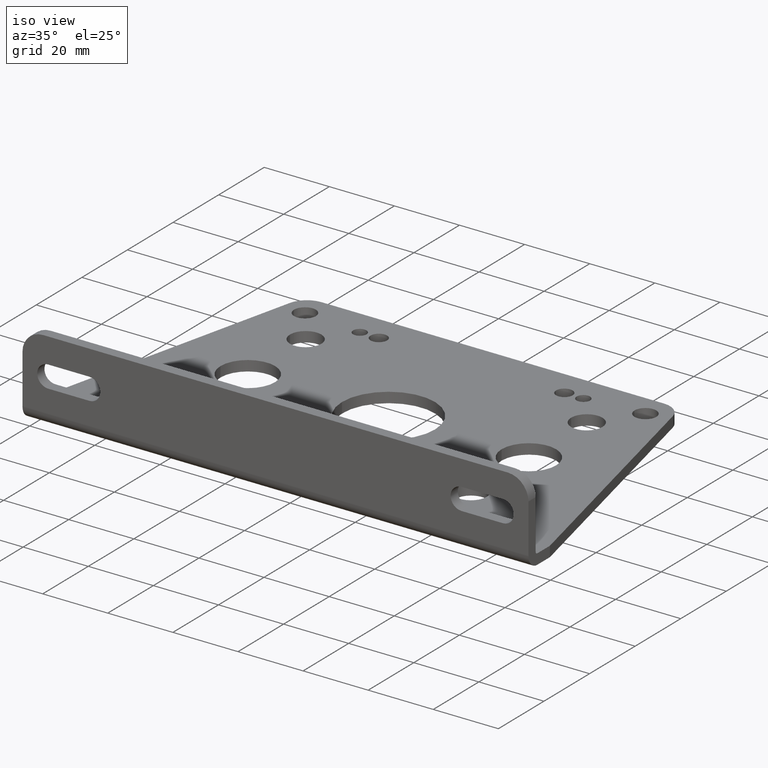
[diagram: clean part render]
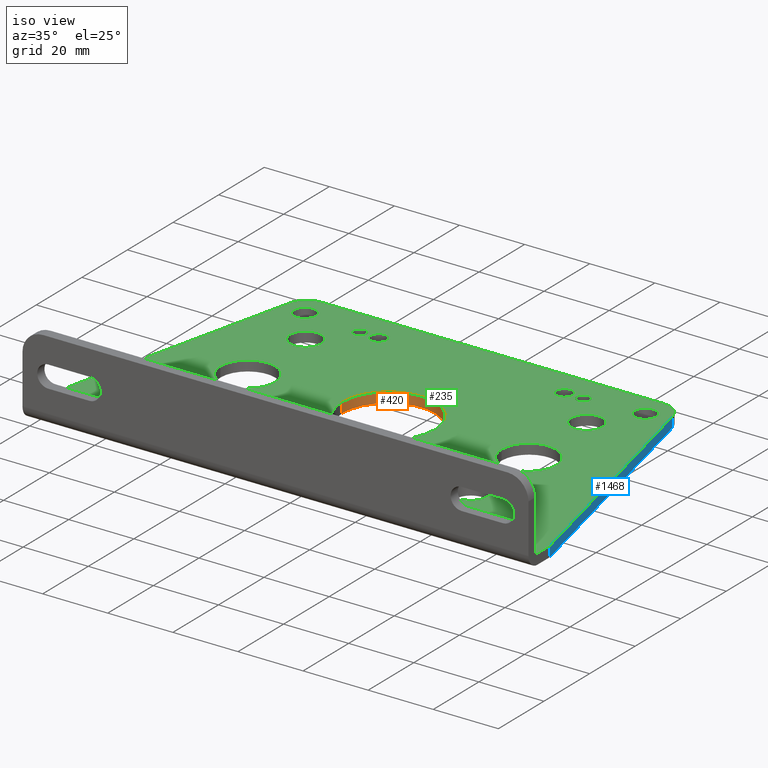
[diagram: same view with three faces highlighted in distinct colors, each labeled with its STEP entity id]
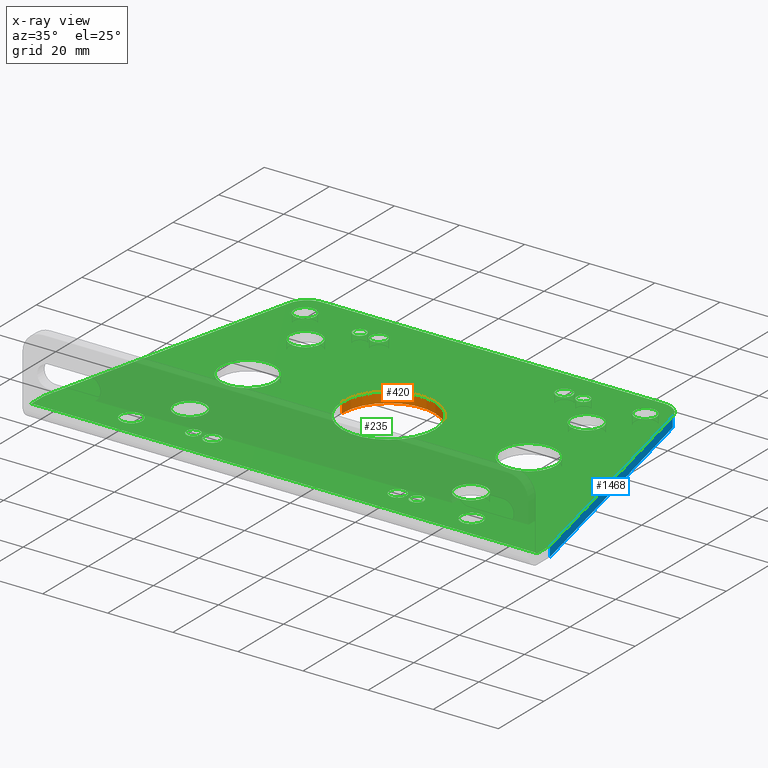
[diagram: x-ray of the same camera — body ghosted, the three highlighted faces saturated]
A machine part, iso view with three faces highlighted in distinct colors.
The next image is the same camera in x-ray (body ghosted, the three faces saturated) — at least one of them is partly hidden behind the body in this view.
Their STEP definitions:

[orange] entity #420 — the highlighted cylindrical surface (partial cylindrical patch) has radius 14.2875 mm, axis along (-0, -0, 1).
#23 = EDGE_CURVE ( 'NONE', #1027, #573, #1287, .T. ) ;
#29 = CARTESIAN_POINT ( 'NONE',  ( 3.061999999999999800, 1.825000000000001500, -0.1250000000000000000 ) ) ;
#155 = EDGE_CURVE ( 'NONE', #2123, #1027, #2154, .T. ) ;
#161 = DIRECTION ( 'NONE',  ( -0.0000000000000000000, -0.0000000000000000000, 1.000000000000000000 ) ) ;
#214 = CARTESIAN_POINT ( 'NONE',  ( 2.499499999999999800, 1.825000000000001500, -0.1250000000000000000 ) ) ;
#215 = DIRECTION ( 'NONE',  ( 1.000000000000000000, 0.0000000000000000000, 0.0000000000000000000 ) ) ;
#260 = VERTEX_POINT ( 'NONE', #1495 ) ;
#367 = CIRCLE ( 'NONE', #1713, 0.5624999999999997800 ) ;
#420 = ADVANCED_FACE ( 'NONE', ( #670 ), #1912, .F. ) ;
#501 = CARTESIAN_POINT ( 'NONE',  ( 3.624499999999999400, 1.825000000000001500, -0.1250000000000000000 ) ) ;
#522 = ORIENTED_EDGE ( 'NONE', *, *, #155, .T. ) ;
#573 = VERTEX_POINT ( 'NONE', #1028 ) ;
#636 = CARTESIAN_POINT ( 'NONE',  ( 3.061999999999999800, 1.825000000000001500, 0.0000000000000000000 ) ) ;
#670 = FACE_OUTER_BOUND ( 'NONE', #2066, .T. ) ;
#676 = VECTOR ( 'NONE', #1801, 39.37007874015748100 ) ;
#734 = LINE ( 'NONE', #214, #676 ) ;
#816 = DIRECTION ( 'NONE',  ( 1.000000000000000000, 0.0000000000000000000, 0.0000000000000000000 ) ) ;
#860 = DIRECTION ( 'NONE',  ( -0.0000000000000000000, -0.0000000000000000000, 1.000000000000000000 ) ) ;
#988 = ORIENTED_EDGE ( 'NONE', *, *, #1777, .F. ) ;
#1027 = VERTEX_POINT ( 'NONE', #1733 ) ;
#1028 = CARTESIAN_POINT ( 'NONE',  ( 2.499499999999999800, 1.825000000000001500, 0.0000000000000000000 ) ) ;
#1060 = ORIENTED_EDGE ( 'NONE', *, *, #1885, .F. ) ;
#1176 = CARTESIAN_POINT ( 'NONE',  ( 3.624499999999999400, 1.825000000000001500, -0.1250000000000000000 ) ) ;
#1272 = ORIENTED_EDGE ( 'NONE', *, *, #23, .T. ) ;
#1279 = DIRECTION ( 'NONE',  ( 0.0000000000000000000, 0.0000000000000000000, 1.000000000000000000 ) ) ;
#1287 = CIRCLE ( 'NONE', #2285, 0.5624999999999997800 ) ;
#1495 = CARTESIAN_POINT ( 'NONE',  ( 2.499499999999999800, 1.825000000000001500, -0.1250000000000000000 ) ) ;
#1687 = VECTOR ( 'NONE', #860, 39.37007874015748100 ) ;
#1713 = AXIS2_PLACEMENT_3D ( 'NONE', #29, #1279, #215 ) ;
#1733 = CARTESIAN_POINT ( 'NONE',  ( 3.624499999999999400, 1.825000000000001500, 0.0000000000000000000 ) ) ;
#1746 = CARTESIAN_POINT ( 'NONE',  ( 3.061999999999999800, 1.825000000000001500, -0.1250000000000000000 ) ) ;
#1777 = EDGE_CURVE ( 'NONE', #260, #573, #734, .T. ) ;
#1801 = DIRECTION ( 'NONE',  ( -0.0000000000000000000, -0.0000000000000000000, 1.000000000000000000 ) ) ;
#1864 = DIRECTION ( 'NONE',  ( 0.0000000000000000000, 0.0000000000000000000, 1.000000000000000000 ) ) ;
#1885 = EDGE_CURVE ( 'NONE', #2123, #260, #367, .T. ) ;
#1912 = CYLINDRICAL_SURFACE ( 'NONE', #1957, 0.5624999999999997800 ) ;
#1929 = DIRECTION ( 'NONE',  ( 1.000000000000000000, 0.0000000000000000000, 0.0000000000000000000 ) ) ;
#1957 = AXIS2_PLACEMENT_3D ( 'NONE', #1746, #161, #1929 ) ;
#2066 = EDGE_LOOP ( 'NONE', ( #988, #1060, #522, #1272 ) ) ;
#2123 = VERTEX_POINT ( 'NONE', #1176 ) ;
#2154 = LINE ( 'NONE', #501, #1687 ) ;
#2285 = AXIS2_PLACEMENT_3D ( 'NONE', #636, #1864, #816 ) ;

[blue] entity #1468 — the highlighted planar face has unit normal (-0.9738, -0.2276, 0).
#10 = VERTEX_POINT ( 'NONE', #1842 ) ;
#85 = CARTESIAN_POINT ( 'NONE',  ( 5.375133197209614800, 3.431898472698106300, -0.1250000000000000000 ) ) ;
#102 = CARTESIAN_POINT ( 'NONE',  ( 6.120000000000000100, 0.2450000000000016300, -0.1250000000000000000 ) ) ;
#141 = DIRECTION ( 'NONE',  ( 0.2275938907924206500, -0.9737561403523818900, 0.0000000000000000000 ) ) ;
#148 = VECTOR ( 'NONE', #2002, 39.37007874015748100 ) ;
#225 = DIRECTION ( 'NONE',  ( -0.0000000000000000000, -0.0000000000000000000, 1.000000000000000000 ) ) ;
#239 = VERTEX_POINT ( 'NONE', #85 ) ;
#313 = DIRECTION ( 'NONE',  ( 0.2275938907924206500, -0.9737561403523818900, 0.0000000000000000000 ) ) ;
#382 = LINE ( 'NONE', #659, #1278 ) ;
#438 = VECTOR ( 'NONE', #313, 39.37007874015748900 ) ;
#475 = LINE ( 'NONE', #1990, #2294 ) ;
#493 = CARTESIAN_POINT ( 'NONE',  ( 5.330000000000000100, 3.625000000000000900, -0.1250000000000000000 ) ) ;
#494 = ORIENTED_EDGE ( 'NONE', *, *, #506, .T. ) ;
#506 = EDGE_CURVE ( 'NONE', #1933, #10, #382, .T. ) ;
#514 = DIRECTION ( 'NONE',  ( 0.2275938907924206500, -0.9737561403523818900, 0.0000000000000000000 ) ) ;
#659 = CARTESIAN_POINT ( 'NONE',  ( 5.330000000000000100, 3.625000000000000900, 0.0000000000000000000 ) ) ;
#669 = EDGE_CURVE ( 'NONE', #239, #1933, #475, .T. ) ;
#869 = DIRECTION ( 'NONE',  ( -0.9737561403523820000, -0.2275938907924206800, 0.0000000000000000000 ) ) ;
#1092 = EDGE_CURVE ( 'NONE', #239, #1240, #1443, .T. ) ;
#1156 = LINE ( 'NONE', #1294, #148 ) ;
#1232 = PLANE ( 'NONE',  #1739 ) ;
#1240 = VERTEX_POINT ( 'NONE', #102 ) ;
#1278 = VECTOR ( 'NONE', #141, 39.37007874015748900 ) ;
#1294 = CARTESIAN_POINT ( 'NONE',  ( 6.120000000000000100, 0.2450000000000016300, 0.0000000000000000000 ) ) ;
#1403 = CARTESIAN_POINT ( 'NONE',  ( 5.330000000000000100, 3.625000000000000900, 0.0000000000000000000 ) ) ;
#1443 = LINE ( 'NONE', #493, #438 ) ;
#1468 = ADVANCED_FACE ( 'NONE', ( #1904 ), #1232, .F. ) ;
#1739 = AXIS2_PLACEMENT_3D ( 'NONE', #1403, #869, #514 ) ;
#1842 = CARTESIAN_POINT ( 'NONE',  ( 6.120000000000000100, 0.2450000000000015500, 0.0000000000000000000 ) ) ;
#1904 = FACE_OUTER_BOUND ( 'NONE', #2112, .T. ) ;
#1933 = VERTEX_POINT ( 'NONE', #1984 ) ;
#1970 = EDGE_CURVE ( 'NONE', #10, #1240, #1156, .T. ) ;
#1984 = CARTESIAN_POINT ( 'NONE',  ( 5.375133197209614800, 3.431898472698106300, 0.0000000000000000000 ) ) ;
#1990 = CARTESIAN_POINT ( 'NONE',  ( 5.375133197209614800, 3.431898472698106300, 0.0000000000000000000 ) ) ;
#2002 = DIRECTION ( 'NONE',  ( -0.0000000000000000000, -0.0000000000000000000, -1.000000000000000000 ) ) ;
#2033 = ORIENTED_EDGE ( 'NONE', *, *, #1970, .T. ) ;
#2112 = EDGE_LOOP ( 'NONE', ( #2289, #2174, #494, #2033 ) ) ;
#2174 = ORIENTED_EDGE ( 'NONE', *, *, #669, .T. ) ;
#2289 = ORIENTED_EDGE ( 'NONE', *, *, #1092, .F. ) ;
#2294 = VECTOR ( 'NONE', #225, 39.37007874015748100 ) ;

[green] entity #235 — the highlighted planar face has unit normal (0, 0, 1).
#5 = DIRECTION ( 'NONE',  ( 0.0000000000000000000, 0.0000000000000000000, 1.000000000000000000 ) ) ;
#7 = VERTEX_POINT ( 'NONE', #331 ) ;
#10 = VERTEX_POINT ( 'NONE', #1842 ) ;
#23 = EDGE_CURVE ( 'NONE', #1027, #573, #1287, .T. ) ;
#34 = DIRECTION ( 'NONE',  ( 0.0000000000000000000, 0.0000000000000000000, 1.000000000000000000 ) ) ;
#35 = AXIS2_PLACEMENT_3D ( 'NONE', #316, #1554, #497 ) ;
#36 = VERTEX_POINT ( 'NONE', #1179 ) ;
#47 = DIRECTION ( 'NONE',  ( 1.000000000000000000, 0.0000000000000000000, 0.0000000000000000000 ) ) ;
#50 = CIRCLE ( 'NONE', #1222, 0.1319999999999995600 ) ;
#52 = FACE_BOUND ( 'NONE', #2135, .T. ) ;
#55 = CARTESIAN_POINT ( 'NONE',  ( 1.029999999999999600, 1.825000000000001500, 0.0000000000000000000 ) ) ;
#56 = AXIS2_PLACEMENT_3D ( 'NONE', #1620, #1791, #743 ) ;
#59 = CIRCLE ( 'NONE', #81, 0.1319999999999995600 ) ;
#67 = VERTEX_POINT ( 'NONE', #1872 ) ;
#76 = CIRCLE ( 'NONE', #1276, 0.08149999999999993400 ) ;
#81 = AXIS2_PLACEMENT_3D ( 'NONE', #1760, #709, #1940 ) ;
#94 = DIRECTION ( 'NONE',  ( 1.000000000000000000, 0.0000000000000000000, 0.0000000000000000000 ) ) ;
#103 = CARTESIAN_POINT ( 'NONE',  ( 1.837499999999999900, 3.263000000000001200, 0.0000000000000000000 ) ) ;
#113 = CIRCLE ( 'NONE', #1096, 0.08149999999999993400 ) ;
#115 = FACE_BOUND ( 'NONE', #856, .T. ) ;
#116 = CARTESIAN_POINT ( 'NONE',  ( 4.987000000000001000, 3.325000000000001100, 0.0000000000000000000 ) ) ;
#141 = DIRECTION ( 'NONE',  ( 0.2275938907924206500, -0.9737561403523818900, 0.0000000000000000000 ) ) ;
#150 = VERTEX_POINT ( 'NONE', #1212 ) ;
#156 = CARTESIAN_POINT ( 'NONE',  ( 4.493500000000000900, 3.263000000000001200, 0.0000000000000000000 ) ) ;
#157 = EDGE_LOOP ( 'NONE', ( #1088, #2091 ) ) ;
#160 = ORIENTED_EDGE ( 'NONE', *, *, #1708, .F. ) ;
#166 = EDGE_CURVE ( 'NONE', #2281, #1438, #334, .T. ) ;
#169 = CARTESIAN_POINT ( 'NONE',  ( 4.760000000000000700, 0.8250000000000017300, 0.0000000000000000000 ) ) ;
#170 = LINE ( 'NONE', #209, #2049 ) ;
#171 = DIRECTION ( 'NONE',  ( 1.000000000000000000, 0.0000000000000000000, 0.0000000000000000000 ) ) ;
#184 = ORIENTED_EDGE ( 'NONE', *, *, #884, .F. ) ;
#199 = DIRECTION ( 'NONE',  ( 0.0000000000000000000, 0.0000000000000000000, 1.000000000000000000 ) ) ;
#204 = VERTEX_POINT ( 'NONE', #570 ) ;
#206 = CARTESIAN_POINT ( 'NONE',  ( 0.8690000000000001100, 0.3250000000000015700, 0.0000000000000000000 ) ) ;
#209 = CARTESIAN_POINT ( 'NONE',  ( 6.120000000000000100, 3.625000000000000900, 0.0000000000000000000 ) ) ;
#220 = CARTESIAN_POINT ( 'NONE',  ( 4.430000000000000600, 1.825000000000001500, 0.0000000000000000000 ) ) ;
#222 = LINE ( 'NONE', #300, #1174 ) ;
#235 = ADVANCED_FACE ( 'NONE', ( #753, #1122, #1583, #641, #1994, #1527, #1074, #586, #115, #1939, #1472, #1013, #531, #52, #1883, #1422, #952, #477, #2296, #1823 ), #2097, .T. ) ;
#238 = ORIENTED_EDGE ( 'NONE', *, *, #1473, .F. ) ;
#240 = ORIENTED_EDGE ( 'NONE', *, *, #747, .T. ) ;
#244 = CIRCLE ( 'NONE', #1167, 0.1899999999999998900 ) ;
#253 = AXIS2_PLACEMENT_3D ( 'NONE', #481, #1731, #324 ) ;
#254 = ORIENTED_EDGE ( 'NONE', *, *, #2163, .F. ) ;
#261 = EDGE_CURVE ( 'NONE', #2062, #1423, #782, .T. ) ;
#271 = DIRECTION ( 'NONE',  ( 0.0000000000000000000, 0.0000000000000000000, 1.000000000000000000 ) ) ;
#279 = CARTESIAN_POINT ( 'NONE',  ( 1.626499999999999400, 3.263000000000001200, 0.0000000000000000000 ) ) ;
#282 = VERTEX_POINT ( 'NONE', #1693 ) ;
#289 = ORIENTED_EDGE ( 'NONE', *, *, #845, .F. ) ;
#294 = ORIENTED_EDGE ( 'NONE', *, *, #630, .F. ) ;
#295 = ORIENTED_EDGE ( 'NONE', *, *, #944, .F. ) ;
#300 = CARTESIAN_POINT ( 'NONE',  ( 6.120000000000000100, 0.02899999999999998400, 0.0000000000000000000 ) ) ;
#302 = VERTEX_POINT ( 'NONE', #279 ) ;
#316 = CARTESIAN_POINT ( 'NONE',  ( 4.760000000000000700, 2.825000000000001100, 0.0000000000000000000 ) ) ;
#318 = DIRECTION ( 'NONE',  ( 0.0000000000000000000, 0.0000000000000000000, 1.000000000000000000 ) ) ;
#322 = CARTESIAN_POINT ( 'NONE',  ( 5.119000000000000700, 0.3250000000000015700, 0.0000000000000000000 ) ) ;
#324 = DIRECTION ( 'NONE',  ( 1.000000000000000000, 0.0000000000000000000, 0.0000000000000000000 ) ) ;
#327 = DIRECTION ( 'NONE',  ( 0.0000000000000000000, 0.0000000000000000000, 1.000000000000000000 ) ) ;
#329 = CARTESIAN_POINT ( 'NONE',  ( 5.251000000000000300, 0.3250000000000015700, 0.0000000000000000000 ) ) ;
#331 = CARTESIAN_POINT ( 'NONE',  ( 5.251000000000000300, 3.325000000000001100, 0.0000000000000000000 ) ) ;
#332 = CARTESIAN_POINT ( 'NONE',  ( 4.760000000000000700, 1.825000000000001500, 0.0000000000000000000 ) ) ;
#334 = CIRCLE ( 'NONE', #56, 0.1004999999999999200 ) ;
#342 = DIRECTION ( 'NONE',  ( 0.0000000000000000000, 0.0000000000000000000, 1.000000000000000000 ) ) ;
#345 = CARTESIAN_POINT ( 'NONE',  ( 1.359999999999999700, 2.825000000000001100, 0.0000000000000000000 ) ) ;
#349 = VERTEX_POINT ( 'NONE', #633 ) ;
#355 = DIRECTION ( 'NONE',  ( 0.0000000000000000000, 0.0000000000000000000, 1.000000000000000000 ) ) ;
#361 = DIRECTION ( 'NONE',  ( 0.0000000000000000000, 0.0000000000000000000, 1.000000000000000000 ) ) ;
#363 = EDGE_LOOP ( 'NONE', ( #658, #2200 ) ) ;
#368 = EDGE_LOOP ( 'NONE', ( #1245, #2160 ) ) ;
#369 = AXIS2_PLACEMENT_3D ( 'NONE', #169, #342, #1584 ) ;
#382 = LINE ( 'NONE', #659, #1278 ) ;
#389 = CARTESIAN_POINT ( 'NONE',  ( 5.119000000000000700, 3.325000000000001100, 0.0000000000000000000 ) ) ;
#397 = DIRECTION ( 'NONE',  ( 0.0000000000000000000, 0.0000000000000000000, 1.000000000000000000 ) ) ;
#399 = VERTEX_POINT ( 'NONE', #329 ) ;
#401 = DIRECTION ( 'NONE',  ( 0.0000000000000000000, 1.000000000000000000, 0.0000000000000000000 ) ) ;
#405 = EDGE_CURVE ( 'NONE', #694, #2278, #611, .T. ) ;
#414 = CIRCLE ( 'NONE', #1561, 0.1004999999999999200 ) ;
#447 = AXIS2_PLACEMENT_3D ( 'NONE', #322, #680, #1729 ) ;
#455 = CARTESIAN_POINT ( 'NONE',  ( 5.119000000000000700, 0.3250000000000015700, 0.0000000000000000000 ) ) ;
#459 = VERTEX_POINT ( 'NONE', #1370 ) ;
#460 = EDGE_CURVE ( 'NONE', #657, #150, #1848, .T. ) ;
#463 = EDGE_LOOP ( 'NONE', ( #1608, #1089 ) ) ;
#465 = EDGE_CURVE ( 'NONE', #36, #349, #1962, .T. ) ;
#466 = DIRECTION ( 'NONE',  ( 0.0000000000000000000, 0.0000000000000000000, 1.000000000000000000 ) ) ;
#477 = FACE_BOUND ( 'NONE', #572, .T. ) ;
#481 = CARTESIAN_POINT ( 'NONE',  ( 1.359999999999999700, 2.825000000000001100, 0.0000000000000000000 ) ) ;
#482 = CARTESIAN_POINT ( 'NONE',  ( 1.707999999999999300, 3.263000000000001200, 0.0000000000000000000 ) ) ;
#492 = AXIS2_PLACEMENT_3D ( 'NONE', #2167, #1123, #47 ) ;
#497 = DIRECTION ( 'NONE',  ( 1.000000000000000000, 0.0000000000000000000, 0.0000000000000000000 ) ) ;
#506 = EDGE_CURVE ( 'NONE', #1933, #10, #382, .T. ) ;
#512 = DIRECTION ( 'NONE',  ( 1.000000000000000000, 0.0000000000000000000, 0.0000000000000000000 ) ) ;
#516 = AXIS2_PLACEMENT_3D ( 'NONE', #854, #2087, #1042 ) ;
#525 = CIRCLE ( 'NONE', #566, 0.08149999999999967000 ) ;
#530 = DIRECTION ( 'NONE',  ( 0.2275938907924206500, 0.9737561403523818900, 0.0000000000000000000 ) ) ;
#531 = FACE_BOUND ( 'NONE', #363, .T. ) ;
#535 = EDGE_CURVE ( 'NONE', #1927, #1475, #1332, .T. ) ;
#547 = ORIENTED_EDGE ( 'NONE', *, *, #460, .F. ) ;
#550 = DIRECTION ( 'NONE',  ( 0.0000000000000000000, 0.0000000000000000000, 1.000000000000000000 ) ) ;
#559 = DIRECTION ( 'NONE',  ( 1.000000000000000000, 0.0000000000000000000, 0.0000000000000000000 ) ) ;
#560 = AXIS2_PLACEMENT_3D ( 'NONE', #1925, #874, #2105 ) ;
#566 = AXIS2_PLACEMENT_3D ( 'NONE', #1090, #5, #795 ) ;
#568 = CARTESIAN_POINT ( 'NONE',  ( 0.9883058378784832500, 3.625000000000000900, 0.0000000000000000000 ) ) ;
#569 = ORIENTED_EDGE ( 'NONE', *, *, #1930, .F. ) ;
#570 = CARTESIAN_POINT ( 'NONE',  ( 4.081500000000000100, 0.3870000000000016200, 0.0000000000000000000 ) ) ;
#572 = EDGE_LOOP ( 'NONE', ( #1899, #294 ) ) ;
#573 = VERTEX_POINT ( 'NONE', #1028 ) ;
#575 = AXIS2_PLACEMENT_3D ( 'NONE', #1523, #466, #1694 ) ;
#576 = DIRECTION ( 'NONE',  ( 1.000000000000000000, 0.0000000000000000000, 0.0000000000000000000 ) ) ;
#577 = EDGE_CURVE ( 'NONE', #1728, #1896, #222, .T. ) ;
#580 = CARTESIAN_POINT ( 'NONE',  ( 0.0000000000000000000, 0.0000000000000000000, 0.0000000000000000000 ) ) ;
#583 = CARTESIAN_POINT ( 'NONE',  ( 6.120000000000000100, 0.0000000000000000000, 0.0000000000000000000 ) ) ;
#586 = FACE_BOUND ( 'NONE', #2257, .T. ) ;
#592 = EDGE_CURVE ( 'NONE', #67, #679, #170, .T. ) ;
#603 = CIRCLE ( 'NONE', #516, 0.1005000000000002000 ) ;
#605 = EDGE_CURVE ( 'NONE', #1670, #688, #1119, .T. ) ;
#611 = CIRCLE ( 'NONE', #1834, 0.1005000000000002000 ) ;
#615 = CARTESIAN_POINT ( 'NONE',  ( 4.182000000000000400, 0.3870000000000016200, 0.0000000000000000000 ) ) ;
#625 = EDGE_CURVE ( 'NONE', #282, #1610, #113, .T. ) ;
#630 = EDGE_CURVE ( 'NONE', #1139, #7, #50, .T. ) ;
#633 = CARTESIAN_POINT ( 'NONE',  ( 1.169999999999999700, 0.8250000000000017300, 0.0000000000000000000 ) ) ;
#634 = DIRECTION ( 'NONE',  ( 1.000000000000000000, 0.0000000000000000000, 0.0000000000000000000 ) ) ;
#636 = CARTESIAN_POINT ( 'NONE',  ( 3.061999999999999800, 1.825000000000001500, 0.0000000000000000000 ) ) ;
#639 = LINE ( 'NONE', #583, #1420 ) ;
#641 = FACE_BOUND ( 'NONE', #1855, .T. ) ;
#647 = CIRCLE ( 'NONE', #1066, 0.08149999999999993400 ) ;
#649 = CARTESIAN_POINT ( 'NONE',  ( 1.359999999999999700, 0.8250000000000017300, 0.0000000000000000000 ) ) ;
#657 = VERTEX_POINT ( 'NONE', #754 ) ;
#658 = ORIENTED_EDGE ( 'NONE', *, *, #605, .F. ) ;
#659 = CARTESIAN_POINT ( 'NONE',  ( 5.330000000000000100, 3.625000000000000900, 0.0000000000000000000 ) ) ;
#660 = DIRECTION ( 'NONE',  ( 1.000000000000000000, 0.0000000000000000000, 0.0000000000000000000 ) ) ;
#674 = ORIENTED_EDGE ( 'NONE', *, *, #625, .F. ) ;
#675 = CARTESIAN_POINT ( 'NONE',  ( 1.789499999999999200, 3.263000000000001200, 0.0000000000000000000 ) ) ;
#677 = LINE ( 'NONE', #580, #2027 ) ;
#679 = VERTEX_POINT ( 'NONE', #568 ) ;
#680 = DIRECTION ( 'NONE',  ( 0.0000000000000000000, 0.0000000000000000000, 1.000000000000000000 ) ) ;
#687 = EDGE_CURVE ( 'NONE', #1728, #10, #639, .T. ) ;
#688 = VERTEX_POINT ( 'NONE', #220 ) ;
#694 = VERTEX_POINT ( 'NONE', #1813 ) ;
#706 = CARTESIAN_POINT ( 'NONE',  ( 1.359999999999999700, 0.8250000000000017300, 0.0000000000000000000 ) ) ;
#709 = DIRECTION ( 'NONE',  ( 0.0000000000000000000, 0.0000000000000000000, 1.000000000000000000 ) ) ;
#718 = DIRECTION ( 'NONE',  ( 0.0000000000000000000, 0.0000000000000000000, 1.000000000000000000 ) ) ;
#727 = EDGE_CURVE ( 'NONE', #459, #1490, #414, .T. ) ;
#730 = AXIS2_PLACEMENT_3D ( 'NONE', #1271, #199, #1445 ) ;
#731 = CARTESIAN_POINT ( 'NONE',  ( 6.120000000000000100, 0.02899999999999998400, 0.0000000000000000000 ) ) ;
#738 = ORIENTED_EDGE ( 'NONE', *, *, #577, .F. ) ;
#743 = DIRECTION ( 'NONE',  ( 1.000000000000000000, 0.0000000000000000000, 0.0000000000000000000 ) ) ;
#747 = EDGE_CURVE ( 'NONE', #1933, #67, #1360, .T. ) ;
#753 = FACE_BOUND ( 'NONE', #1938, .T. ) ;
#754 = CARTESIAN_POINT ( 'NONE',  ( 4.570000000000000300, 0.8250000000000017300, 0.0000000000000000000 ) ) ;
#757 = ORIENTED_EDGE ( 'NONE', *, *, #535, .F. ) ;
#765 = VERTEX_POINT ( 'NONE', #900 ) ;
#768 = VERTEX_POINT ( 'NONE', #1985 ) ;
#772 = DIRECTION ( 'NONE',  ( 0.0000000000000000000, 0.0000000000000000000, 1.000000000000000000 ) ) ;
#782 = CIRCLE ( 'NONE', #1143, 0.1899999999999998900 ) ;
#783 = CARTESIAN_POINT ( 'NONE',  ( 4.987000000000001000, 0.3250000000000015700, 0.0000000000000000000 ) ) ;
#795 = DIRECTION ( 'NONE',  ( 1.000000000000000000, 0.0000000000000000000, 0.0000000000000000000 ) ) ;
#799 = DIRECTION ( 'NONE',  ( 1.000000000000000000, 0.0000000000000000000, 0.0000000000000000000 ) ) ;
#803 = DIRECTION ( 'NONE',  ( 0.0000000000000000000, 0.0000000000000000000, 1.000000000000000000 ) ) ;
#806 = DIRECTION ( 'NONE',  ( 0.0000000000000000000, 0.0000000000000000000, 1.000000000000000000 ) ) ;
#816 = DIRECTION ( 'NONE',  ( 1.000000000000000000, 0.0000000000000000000, 0.0000000000000000000 ) ) ;
#817 = ORIENTED_EDGE ( 'NONE', *, *, #1501, .F. ) ;
#821 = EDGE_CURVE ( 'NONE', #1894, #399, #948, .T. ) ;
#829 = EDGE_LOOP ( 'NONE', ( #1321, #240, #1290, #1695, #817, #1573, #738, #1663 ) ) ;
#835 = DIRECTION ( 'NONE',  ( 1.000000000000000000, 0.0000000000000000000, 0.0000000000000000000 ) ) ;
#836 = EDGE_LOOP ( 'NONE', ( #2101, #547 ) ) ;
#837 = CIRCLE ( 'NONE', #1345, 0.1319999999999999800 ) ;
#845 = EDGE_CURVE ( 'NONE', #1515, #2272, #525, .T. ) ;
#854 = CARTESIAN_POINT ( 'NONE',  ( 4.182000000000000400, 0.3870000000000016200, 0.0000000000000000000 ) ) ;
#856 = EDGE_LOOP ( 'NONE', ( #757, #295 ) ) ;
#859 = AXIS2_PLACEMENT_3D ( 'NONE', #1822, #772, #2007 ) ;
#874 = DIRECTION ( 'NONE',  ( 0.0000000000000000000, 0.0000000000000000000, 1.000000000000000000 ) ) ;
#876 = CIRCLE ( 'NONE', #1755, 0.08150000000000021100 ) ;
#877 = CARTESIAN_POINT ( 'NONE',  ( 1.169999999999999700, 2.825000000000001100, 0.0000000000000000000 ) ) ;
#884 = EDGE_CURVE ( 'NONE', #1065, #302, #2241, .T. ) ;
#887 = ORIENTED_EDGE ( 'NONE', *, *, #2078, .F. ) ;
#898 = AXIS2_PLACEMENT_3D ( 'NONE', #2268, #1732, #1228 ) ;
#900 = CARTESIAN_POINT ( 'NONE',  ( 0.8689999999999998800, 3.325000000000001100, 0.0000000000000000000 ) ) ;
#901 = CIRCLE ( 'NONE', #1910, 0.1004999999999999200 ) ;
#902 = DIRECTION ( 'NONE',  ( 0.0000000000000000000, 0.0000000000000000000, 1.000000000000000000 ) ) ;
#918 = EDGE_CURVE ( 'NONE', #150, #657, #1710, .T. ) ;
#921 = AXIS2_PLACEMENT_3D ( 'NONE', #332, #1574, #512 ) ;
#928 = CIRCLE ( 'NONE', #1996, 0.1005000000000002000 ) ;
#933 = CARTESIAN_POINT ( 'NONE',  ( 1.359999999999999700, 1.825000000000001500, 0.0000000000000000000 ) ) ;
#944 = EDGE_CURVE ( 'NONE', #1475, #1927, #244, .T. ) ;
#948 = CIRCLE ( 'NONE', #447, 0.1319999999999995600 ) ;
#952 = FACE_BOUND ( 'NONE', #1704, .T. ) ;
#968 = EDGE_LOOP ( 'NONE', ( #1995, #160 ) ) ;
#985 = CARTESIAN_POINT ( 'NONE',  ( 4.282500000000000600, 0.3870000000000016200, 0.0000000000000000000 ) ) ;
#1000 = AXIS2_PLACEMENT_3D ( 'NONE', #1850, #803, #2035 ) ;
#1001 = VERTEX_POINT ( 'NONE', #156 ) ;
#1009 = EDGE_CURVE ( 'NONE', #1136, #1979, #1093, .T. ) ;
#1010 = CARTESIAN_POINT ( 'NONE',  ( 1.689999999999999700, 1.825000000000001500, 0.0000000000000000000 ) ) ;
#1013 = FACE_BOUND ( 'NONE', #1265, .T. ) ;
#1014 = CARTESIAN_POINT ( 'NONE',  ( 1.001000000000000100, 0.3250000000000015700, 0.0000000000000000000 ) ) ;
#1015 = AXIS2_PLACEMENT_3D ( 'NONE', #1564, #327, #1392 ) ;
#1019 = VERTEX_POINT ( 'NONE', #2098 ) ;
#1027 = VERTEX_POINT ( 'NONE', #1733 ) ;
#1028 = CARTESIAN_POINT ( 'NONE',  ( 2.499499999999999800, 1.825000000000001500, 0.0000000000000000000 ) ) ;
#1036 = CARTESIAN_POINT ( 'NONE',  ( 4.950000000000000200, 2.825000000000001100, 0.0000000000000000000 ) ) ;
#1042 = DIRECTION ( 'NONE',  ( 1.000000000000000000, 0.0000000000000000000, 0.0000000000000000000 ) ) ;
#1052 = AXIS2_PLACEMENT_3D ( 'NONE', #1425, #355, #1596 ) ;
#1056 = DIRECTION ( 'NONE',  ( 0.0000000000000000000, 0.0000000000000000000, 1.000000000000000000 ) ) ;
#1058 = CARTESIAN_POINT ( 'NONE',  ( 4.182000000000000400, 3.263000000000001200, 0.0000000000000000000 ) ) ;
#1064 = CARTESIAN_POINT ( 'NONE',  ( 4.411999999999999900, 3.263000000000001200, 0.0000000000000000000 ) ) ;
#1065 = VERTEX_POINT ( 'NONE', #675 ) ;
#1066 = AXIS2_PLACEMENT_3D ( 'NONE', #482, #1712, #660 ) ;
#1074 = FACE_BOUND ( 'NONE', #1519, .T. ) ;
#1081 = CARTESIAN_POINT ( 'NONE',  ( 4.330500000000000700, 0.3870000000000016200, 0.0000000000000000000 ) ) ;
#1088 = ORIENTED_EDGE ( 'NONE', *, *, #1292, .F. ) ;
#1089 = ORIENTED_EDGE ( 'NONE', *, *, #1682, .F. ) ;
#1090 = CARTESIAN_POINT ( 'NONE',  ( 4.411999999999999900, 0.3870000000000016200, 0.0000000000000000000 ) ) ;
#1091 = CIRCLE ( 'NONE', #35, 0.1899999999999998900 ) ;
#1093 = CIRCLE ( 'NONE', #1015, 0.3300000000000000200 ) ;
#1096 = AXIS2_PLACEMENT_3D ( 'NONE', #1114, #34, #1282 ) ;
#1114 = CARTESIAN_POINT ( 'NONE',  ( 1.707999999999999300, 0.3870000000000016200, 0.0000000000000000000 ) ) ;
#1117 = DIRECTION ( 'NONE',  ( 1.000000000000000000, 0.0000000000000000000, 0.0000000000000000000 ) ) ;
#1119 = CIRCLE ( 'NONE', #1262, 0.3300000000000000200 ) ;
#1122 = FACE_BOUND ( 'NONE', #1550, .T. ) ;
#1123 = DIRECTION ( 'NONE',  ( 0.0000000000000000000, 0.0000000000000000000, 1.000000000000000000 ) ) ;
#1125 = DIRECTION ( 'NONE',  ( 0.0000000000000000000, 1.000000000000000000, 0.0000000000000000000 ) ) ;
#1127 = CIRCLE ( 'NONE', #1052, 0.08149999999999967000 ) ;
#1136 = VERTEX_POINT ( 'NONE', #1010 ) ;
#1139 = VERTEX_POINT ( 'NONE', #116 ) ;
#1143 = AXIS2_PLACEMENT_3D ( 'NONE', #2232, #1186, #2053 ) ;
#1153 = CIRCLE ( 'NONE', #492, 0.1319999999999999800 ) ;
#1157 = ORIENTED_EDGE ( 'NONE', *, *, #465, .F. ) ;
#1167 = AXIS2_PLACEMENT_3D ( 'NONE', #345, #1414, #171 ) ;
#1169 = ORIENTED_EDGE ( 'NONE', *, *, #1453, .F. ) ;
#1173 = CARTESIAN_POINT ( 'NONE',  ( 4.081500000000000100, 3.263000000000001200, 0.0000000000000000000 ) ) ;
#1174 = VECTOR ( 'NONE', #1389, 39.37007874015748100 ) ;
#1179 = CARTESIAN_POINT ( 'NONE',  ( 1.549999999999999600, 0.8250000000000017300, 0.0000000000000000000 ) ) ;
#1181 = EDGE_CURVE ( 'NONE', #1758, #1751, #1417, .T. ) ;
#1186 = DIRECTION ( 'NONE',  ( 0.0000000000000000000, 0.0000000000000000000, 1.000000000000000000 ) ) ;
#1189 = ORIENTED_EDGE ( 'NONE', *, *, #2041, .F. ) ;
#1191 = DIRECTION ( 'NONE',  ( 1.000000000000000000, 0.0000000000000000000, 0.0000000000000000000 ) ) ;
#1210 = ORIENTED_EDGE ( 'NONE', *, *, #261, .F. ) ;
#1212 = CARTESIAN_POINT ( 'NONE',  ( 4.950000000000000200, 0.8250000000000017300, 0.0000000000000000000 ) ) ;
#1218 = CIRCLE ( 'NONE', #1364, 0.3300000000000000200 ) ;
#1222 = AXIS2_PLACEMENT_3D ( 'NONE', #389, #1632, #576 ) ;
#1228 = DIRECTION ( 'NONE',  ( 1.000000000000000000, 0.0000000000000000000, -0.0000000000000000000 ) ) ;
#1230 = ORIENTED_EDGE ( 'NONE', *, *, #821, .F. ) ;
#1233 = DIRECTION ( 'NONE',  ( 0.0000000000000000000, 0.0000000000000000000, 1.000000000000000000 ) ) ;
#1238 = DIRECTION ( 'NONE',  ( 1.000000000000000000, 0.0000000000000000000, 0.0000000000000000000 ) ) ;
#1245 = ORIENTED_EDGE ( 'NONE', *, *, #1009, .F. ) ;
#1251 = ORIENTED_EDGE ( 'NONE', *, *, #1657, .F. ) ;
#1253 = ORIENTED_EDGE ( 'NONE', *, *, #23, .F. ) ;
#1259 = CARTESIAN_POINT ( 'NONE',  ( 5.090000000000000700, 1.825000000000001500, 0.0000000000000000000 ) ) ;
#1262 = AXIS2_PLACEMENT_3D ( 'NONE', #1639, #2161, #559 ) ;
#1265 = EDGE_LOOP ( 'NONE', ( #2121, #1210 ) ) ;
#1270 = ORIENTED_EDGE ( 'NONE', *, *, #2131, .F. ) ;
#1271 = CARTESIAN_POINT ( 'NONE',  ( 4.182000000000000400, 3.263000000000001200, 0.0000000000000000000 ) ) ;
#1274 = CARTESIAN_POINT ( 'NONE',  ( 1.133000000000000000, 0.3250000000000015700, 0.0000000000000000000 ) ) ;
#1276 = AXIS2_PLACEMENT_3D ( 'NONE', #2099, #1056, #2270 ) ;
#1278 = VECTOR ( 'NONE', #141, 39.37007874015748900 ) ;
#1281 = AXIS2_PLACEMENT_3D ( 'NONE', #1945, #718, #1767 ) ;
#1282 = DIRECTION ( 'NONE',  ( 1.000000000000000000, 0.0000000000000000000, 0.0000000000000000000 ) ) ;
#1287 = CIRCLE ( 'NONE', #2285, 0.5624999999999997800 ) ;
#1288 = AXIS2_PLACEMENT_3D ( 'NONE', #649, #1882, #835 ) ;
#1290 = ORIENTED_EDGE ( 'NONE', *, *, #592, .T. ) ;
#1292 = EDGE_CURVE ( 'NONE', #1751, #1758, #837, .T. ) ;
#1313 = CIRCLE ( 'NONE', #1442, 0.1319999999999999800 ) ;
#1321 = ORIENTED_EDGE ( 'NONE', *, *, #506, .F. ) ;
#1332 = CIRCLE ( 'NONE', #253, 0.1899999999999998900 ) ;
#1334 = EDGE_CURVE ( 'NONE', #1423, #2062, #1091, .T. ) ;
#1345 = AXIS2_PLACEMENT_3D ( 'NONE', #1014, #2239, #1191 ) ;
#1351 = EDGE_CURVE ( 'NONE', #204, #2229, #603, .T. ) ;
#1360 = CIRCLE ( 'NONE', #859, 0.2499999999999998100 ) ;
#1364 = AXIS2_PLACEMENT_3D ( 'NONE', #933, #2157, #1117 ) ;
#1370 = CARTESIAN_POINT ( 'NONE',  ( 1.837499999999999900, 0.3870000000000016200, 0.0000000000000000000 ) ) ;
#1378 = CARTESIAN_POINT ( 'NONE',  ( 0.0000000000000000000, 0.2450000000000007400, 0.0000000000000000000 ) ) ;
#1389 = DIRECTION ( 'NONE',  ( -1.000000000000000000, -0.0000000000000000000, -0.0000000000000000000 ) ) ;
#1392 = DIRECTION ( 'NONE',  ( 1.000000000000000000, 0.0000000000000000000, 0.0000000000000000000 ) ) ;
#1397 = AXIS2_PLACEMENT_3D ( 'NONE', #1064, #2279, #1238 ) ;
#1398 = ORIENTED_EDGE ( 'NONE', *, *, #166, .F. ) ;
#1414 = DIRECTION ( 'NONE',  ( 0.0000000000000000000, 0.0000000000000000000, 1.000000000000000000 ) ) ;
#1417 = CIRCLE ( 'NONE', #1000, 0.1319999999999999800 ) ;
#1420 = VECTOR ( 'NONE', #401, 39.37007874015748100 ) ;
#1422 = FACE_BOUND ( 'NONE', #157, .T. ) ;
#1423 = VERTEX_POINT ( 'NONE', #1036 ) ;
#1425 = CARTESIAN_POINT ( 'NONE',  ( 4.411999999999999900, 0.3870000000000016200, 0.0000000000000000000 ) ) ;
#1426 = VERTEX_POINT ( 'NONE', #1378 ) ;
#1429 = CARTESIAN_POINT ( 'NONE',  ( 1.937999999999999900, 0.3870000000000016200, 0.0000000000000000000 ) ) ;
#1438 = VERTEX_POINT ( 'NONE', #1567 ) ;
#1441 = CIRCLE ( 'NONE', #1397, 0.08150000000000021100 ) ;
#1442 = AXIS2_PLACEMENT_3D ( 'NONE', #1609, #550, #1783 ) ;
#1445 = DIRECTION ( 'NONE',  ( 1.000000000000000000, 0.0000000000000000000, 0.0000000000000000000 ) ) ;
#1453 = EDGE_CURVE ( 'NONE', #1610, #282, #76, .T. ) ;
#1457 = CARTESIAN_POINT ( 'NONE',  ( 0.0000000000000000000, 0.02899999999999998400, 0.0000000000000000000 ) ) ;
#1463 = CARTESIAN_POINT ( 'NONE',  ( 3.061999999999999800, 1.825000000000001500, 0.0000000000000000000 ) ) ;
#1472 = FACE_BOUND ( 'NONE', #836, .T. ) ;
#1473 = EDGE_CURVE ( 'NONE', #2190, #1001, #1441, .T. ) ;
#1475 = VERTEX_POINT ( 'NONE', #877 ) ;
#1482 = AXIS2_PLACEMENT_3D ( 'NONE', #1463, #397, #1635 ) ;
#1490 = VERTEX_POINT ( 'NONE', #1582 ) ;
#1501 = EDGE_CURVE ( 'NONE', #1426, #768, #1750, .T. ) ;
#1514 = CARTESIAN_POINT ( 'NONE',  ( 1.937999999999999900, 0.3870000000000016200, 0.0000000000000000000 ) ) ;
#1515 = VERTEX_POINT ( 'NONE', #1081 ) ;
#1519 = EDGE_LOOP ( 'NONE', ( #1270, #1398 ) ) ;
#1523 = CARTESIAN_POINT ( 'NONE',  ( 1.937999999999999900, 3.263000000000001200, 0.0000000000000000000 ) ) ;
#1527 = FACE_BOUND ( 'NONE', #968, .T. ) ;
#1528 = EDGE_CURVE ( 'NONE', #2272, #1515, #1127, .T. ) ;
#1536 = CIRCLE ( 'NONE', #921, 0.3300000000000000200 ) ;
#1550 = EDGE_LOOP ( 'NONE', ( #1189, #1638 ) ) ;
#1554 = DIRECTION ( 'NONE',  ( 0.0000000000000000000, 0.0000000000000000000, 1.000000000000000000 ) ) ;
#1555 = DIRECTION ( 'NONE',  ( 1.000000000000000000, 0.0000000000000000000, 0.0000000000000000000 ) ) ;
#1561 = AXIS2_PLACEMENT_3D ( 'NONE', #1514, #271, #94 ) ;
#1564 = CARTESIAN_POINT ( 'NONE',  ( 1.359999999999999700, 1.825000000000001500, 0.0000000000000000000 ) ) ;
#1567 = CARTESIAN_POINT ( 'NONE',  ( 2.038500000000000000, 3.263000000000001200, 0.0000000000000000000 ) ) ;
#1573 = ORIENTED_EDGE ( 'NONE', *, *, #1964, .F. ) ;
#1574 = DIRECTION ( 'NONE',  ( 0.0000000000000000000, 0.0000000000000000000, 1.000000000000000000 ) ) ;
#1575 = EDGE_CURVE ( 'NONE', #688, #1670, #1536, .T. ) ;
#1579 = EDGE_CURVE ( 'NONE', #679, #768, #1589, .T. ) ;
#1582 = CARTESIAN_POINT ( 'NONE',  ( 2.038500000000000000, 0.3870000000000016200, 0.0000000000000000000 ) ) ;
#1583 = FACE_BOUND ( 'NONE', #2253, .T. ) ;
#1584 = DIRECTION ( 'NONE',  ( 1.000000000000000000, 0.0000000000000000000, 0.0000000000000000000 ) ) ;
#1589 = CIRCLE ( 'NONE', #560, 0.2499999999999999200 ) ;
#1591 = CARTESIAN_POINT ( 'NONE',  ( 0.0000000000000000000, 0.2450000000000008000, 0.0000000000000000000 ) ) ;
#1596 = DIRECTION ( 'NONE',  ( 1.000000000000000000, 0.0000000000000000000, 0.0000000000000000000 ) ) ;
#1601 = DIRECTION ( 'NONE',  ( 1.000000000000000000, 0.0000000000000000000, 0.0000000000000000000 ) ) ;
#1605 = AXIS2_PLACEMENT_3D ( 'NONE', #706, #318, #1555 ) ;
#1608 = ORIENTED_EDGE ( 'NONE', *, *, #1805, .F. ) ;
#1609 = CARTESIAN_POINT ( 'NONE',  ( 1.000999999999999900, 3.325000000000001100, 0.0000000000000000000 ) ) ;
#1610 = VERTEX_POINT ( 'NONE', #1778 ) ;
#1614 = CIRCLE ( 'NONE', #1482, 0.5624999999999997800 ) ;
#1620 = CARTESIAN_POINT ( 'NONE',  ( 1.937999999999999900, 3.263000000000001200, 0.0000000000000000000 ) ) ;
#1629 = EDGE_CURVE ( 'NONE', #7, #1139, #59, .T. ) ;
#1630 = AXIS2_PLACEMENT_3D ( 'NONE', #2132, #902, #1954 ) ;
#1632 = DIRECTION ( 'NONE',  ( 0.0000000000000000000, 0.0000000000000000000, 1.000000000000000000 ) ) ;
#1635 = DIRECTION ( 'NONE',  ( 1.000000000000000000, 0.0000000000000000000, 0.0000000000000000000 ) ) ;
#1638 = ORIENTED_EDGE ( 'NONE', *, *, #1351, .F. ) ;
#1639 = CARTESIAN_POINT ( 'NONE',  ( 4.760000000000000700, 1.825000000000001500, 0.0000000000000000000 ) ) ;
#1657 = EDGE_CURVE ( 'NONE', #1490, #459, #901, .T. ) ;
#1663 = ORIENTED_EDGE ( 'NONE', *, *, #687, .T. ) ;
#1670 = VERTEX_POINT ( 'NONE', #1259 ) ;
#1677 = CARTESIAN_POINT ( 'NONE',  ( 4.570000000000001200, 2.825000000000001100, 0.0000000000000000000 ) ) ;
#1682 = EDGE_CURVE ( 'NONE', #765, #1019, #1313, .T. ) ;
#1686 = DIRECTION ( 'NONE',  ( 0.0000000000000000000, 0.0000000000000000000, 1.000000000000000000 ) ) ;
#1691 = CIRCLE ( 'NONE', #1288, 0.1899999999999998900 ) ;
#1693 = CARTESIAN_POINT ( 'NONE',  ( 1.789499999999999200, 0.3870000000000016200, 0.0000000000000000000 ) ) ;
#1694 = DIRECTION ( 'NONE',  ( 1.000000000000000000, 0.0000000000000000000, 0.0000000000000000000 ) ) ;
#1695 = ORIENTED_EDGE ( 'NONE', *, *, #1579, .T. ) ;
#1704 = EDGE_LOOP ( 'NONE', ( #887, #1230 ) ) ;
#1708 = EDGE_CURVE ( 'NONE', #2278, #694, #2192, .T. ) ;
#1710 = CIRCLE ( 'NONE', #1281, 0.1899999999999998900 ) ;
#1712 = DIRECTION ( 'NONE',  ( 0.0000000000000000000, 0.0000000000000000000, 1.000000000000000000 ) ) ;
#1728 = VERTEX_POINT ( 'NONE', #731 ) ;
#1729 = DIRECTION ( 'NONE',  ( 1.000000000000000000, 0.0000000000000000000, 0.0000000000000000000 ) ) ;
#1731 = DIRECTION ( 'NONE',  ( 0.0000000000000000000, 0.0000000000000000000, 1.000000000000000000 ) ) ;
#1732 = DIRECTION ( 'NONE',  ( 0.0000000000000000000, 0.0000000000000000000, 1.000000000000000000 ) ) ;
#1733 = CARTESIAN_POINT ( 'NONE',  ( 3.624499999999999400, 1.825000000000001500, 0.0000000000000000000 ) ) ;
#1750 = LINE ( 'NONE', #1591, #2260 ) ;
#1751 = VERTEX_POINT ( 'NONE', #1274 ) ;
#1755 = AXIS2_PLACEMENT_3D ( 'NONE', #1853, #806, #2039 ) ;
#1758 = VERTEX_POINT ( 'NONE', #206 ) ;
#1760 = CARTESIAN_POINT ( 'NONE',  ( 5.119000000000000700, 3.325000000000001100, 0.0000000000000000000 ) ) ;
#1767 = DIRECTION ( 'NONE',  ( 1.000000000000000000, 0.0000000000000000000, 0.0000000000000000000 ) ) ;
#1778 = CARTESIAN_POINT ( 'NONE',  ( 1.626499999999999400, 0.3870000000000016200, 0.0000000000000000000 ) ) ;
#1783 = DIRECTION ( 'NONE',  ( 1.000000000000000000, 0.0000000000000000000, 0.0000000000000000000 ) ) ;
#1791 = DIRECTION ( 'NONE',  ( 0.0000000000000000000, 0.0000000000000000000, 1.000000000000000000 ) ) ;
#1802 = CIRCLE ( 'NONE', #1873, 0.1319999999999995600 ) ;
#1804 = EDGE_LOOP ( 'NONE', ( #1157, #254 ) ) ;
#1805 = EDGE_CURVE ( 'NONE', #1019, #765, #1153, .T. ) ;
#1813 = CARTESIAN_POINT ( 'NONE',  ( 4.282500000000000600, 3.263000000000001200, 0.0000000000000000000 ) ) ;
#1822 = CARTESIAN_POINT ( 'NONE',  ( 5.131694162121519300, 3.375000000000000900, 0.0000000000000000000 ) ) ;
#1823 = FACE_OUTER_BOUND ( 'NONE', #829, .T. ) ;
#1834 = AXIS2_PLACEMENT_3D ( 'NONE', #1058, #1233, #2274 ) ;
#1842 = CARTESIAN_POINT ( 'NONE',  ( 6.120000000000000100, 0.2450000000000015500, 0.0000000000000000000 ) ) ;
#1847 = DIRECTION ( 'NONE',  ( 0.0000000000000000000, 0.0000000000000000000, 1.000000000000000000 ) ) ;
#1848 = CIRCLE ( 'NONE', #369, 0.1899999999999998900 ) ;
#1850 = CARTESIAN_POINT ( 'NONE',  ( 1.001000000000000100, 0.3250000000000015700, 0.0000000000000000000 ) ) ;
#1853 = CARTESIAN_POINT ( 'NONE',  ( 4.411999999999999900, 3.263000000000001200, 0.0000000000000000000 ) ) ;
#1855 = EDGE_LOOP ( 'NONE', ( #674, #1169 ) ) ;
#1864 = DIRECTION ( 'NONE',  ( 0.0000000000000000000, 0.0000000000000000000, 1.000000000000000000 ) ) ;
#1872 = CARTESIAN_POINT ( 'NONE',  ( 5.131694162121519300, 3.625000000000000900, 0.0000000000000000000 ) ) ;
#1873 = AXIS2_PLACEMENT_3D ( 'NONE', #455, #1686, #634 ) ;
#1882 = DIRECTION ( 'NONE',  ( 0.0000000000000000000, 0.0000000000000000000, 1.000000000000000000 ) ) ;
#1883 = FACE_BOUND ( 'NONE', #368, .T. ) ;
#1891 = CARTESIAN_POINT ( 'NONE',  ( 4.330499999999999800, 3.263000000000001200, 0.0000000000000000000 ) ) ;
#1894 = VERTEX_POINT ( 'NONE', #783 ) ;
#1896 = VERTEX_POINT ( 'NONE', #1457 ) ;
#1899 = ORIENTED_EDGE ( 'NONE', *, *, #1629, .F. ) ;
#1910 = AXIS2_PLACEMENT_3D ( 'NONE', #1429, #361, #1601 ) ;
#1925 = CARTESIAN_POINT ( 'NONE',  ( 0.9883058378784812500, 3.375000000000000900, 0.0000000000000000000 ) ) ;
#1926 = EDGE_CURVE ( 'NONE', #1979, #1136, #1218, .T. ) ;
#1927 = VERTEX_POINT ( 'NONE', #2152 ) ;
#1930 = EDGE_CURVE ( 'NONE', #573, #1027, #1614, .T. ) ;
#1933 = VERTEX_POINT ( 'NONE', #1984 ) ;
#1938 = EDGE_LOOP ( 'NONE', ( #2295, #289 ) ) ;
#1939 = FACE_BOUND ( 'NONE', #1804, .T. ) ;
#1940 = DIRECTION ( 'NONE',  ( 1.000000000000000000, 0.0000000000000000000, 0.0000000000000000000 ) ) ;
#1945 = CARTESIAN_POINT ( 'NONE',  ( 4.760000000000000700, 0.8250000000000017300, 0.0000000000000000000 ) ) ;
#1954 = DIRECTION ( 'NONE',  ( 1.000000000000000000, 0.0000000000000000000, 0.0000000000000000000 ) ) ;
#1962 = CIRCLE ( 'NONE', #1605, 0.1899999999999998900 ) ;
#1963 = DIRECTION ( 'NONE',  ( -1.000000000000000000, -0.0000000000000000000, -0.0000000000000000000 ) ) ;
#1964 = EDGE_CURVE ( 'NONE', #1896, #1426, #677, .T. ) ;
#1979 = VERTEX_POINT ( 'NONE', #55 ) ;
#1984 = CARTESIAN_POINT ( 'NONE',  ( 5.375133197209614800, 3.431898472698106300, 0.0000000000000000000 ) ) ;
#1985 = CARTESIAN_POINT ( 'NONE',  ( 0.7448668027903855300, 3.431898472698106300, 0.0000000000000000000 ) ) ;
#1994 = FACE_BOUND ( 'NONE', #2280, .T. ) ;
#1995 = ORIENTED_EDGE ( 'NONE', *, *, #405, .F. ) ;
#1996 = AXIS2_PLACEMENT_3D ( 'NONE', #615, #1847, #799 ) ;
#2007 = DIRECTION ( 'NONE',  ( 1.000000000000000000, 0.0000000000000000000, 0.0000000000000000000 ) ) ;
#2027 = VECTOR ( 'NONE', #1125, 39.37007874015748100 ) ;
#2028 = ORIENTED_EDGE ( 'NONE', *, *, #727, .F. ) ;
#2035 = DIRECTION ( 'NONE',  ( 1.000000000000000000, 0.0000000000000000000, 0.0000000000000000000 ) ) ;
#2039 = DIRECTION ( 'NONE',  ( 1.000000000000000000, 0.0000000000000000000, 0.0000000000000000000 ) ) ;
#2041 = EDGE_CURVE ( 'NONE', #2229, #204, #928, .T. ) ;
#2045 = CARTESIAN_POINT ( 'NONE',  ( 4.493500000000000000, 0.3870000000000016200, 0.0000000000000000000 ) ) ;
#2049 = VECTOR ( 'NONE', #1963, 39.37007874015748100 ) ;
#2053 = DIRECTION ( 'NONE',  ( 1.000000000000000000, 0.0000000000000000000, 0.0000000000000000000 ) ) ;
#2061 = EDGE_CURVE ( 'NONE', #1001, #2190, #876, .T. ) ;
#2062 = VERTEX_POINT ( 'NONE', #1677 ) ;
#2078 = EDGE_CURVE ( 'NONE', #399, #1894, #1802, .T. ) ;
#2087 = DIRECTION ( 'NONE',  ( 0.0000000000000000000, 0.0000000000000000000, 1.000000000000000000 ) ) ;
#2091 = ORIENTED_EDGE ( 'NONE', *, *, #1181, .F. ) ;
#2097 = PLANE ( 'NONE',  #898 ) ;
#2098 = CARTESIAN_POINT ( 'NONE',  ( 1.133000000000000000, 3.325000000000001100, 0.0000000000000000000 ) ) ;
#2099 = CARTESIAN_POINT ( 'NONE',  ( 1.707999999999999300, 0.3870000000000016200, 0.0000000000000000000 ) ) ;
#2101 = ORIENTED_EDGE ( 'NONE', *, *, #918, .F. ) ;
#2105 = DIRECTION ( 'NONE',  ( 1.000000000000000000, 0.0000000000000000000, 0.0000000000000000000 ) ) ;
#2116 = ORIENTED_EDGE ( 'NONE', *, *, #2177, .F. ) ;
#2121 = ORIENTED_EDGE ( 'NONE', *, *, #1334, .F. ) ;
#2131 = EDGE_CURVE ( 'NONE', #1438, #2281, #2221, .T. ) ;
#2132 = CARTESIAN_POINT ( 'NONE',  ( 1.707999999999999300, 3.263000000000001200, 0.0000000000000000000 ) ) ;
#2135 = EDGE_LOOP ( 'NONE', ( #1253, #569 ) ) ;
#2152 = CARTESIAN_POINT ( 'NONE',  ( 1.549999999999999600, 2.825000000000001100, 0.0000000000000000000 ) ) ;
#2157 = DIRECTION ( 'NONE',  ( 0.0000000000000000000, 0.0000000000000000000, 1.000000000000000000 ) ) ;
#2160 = ORIENTED_EDGE ( 'NONE', *, *, #1926, .F. ) ;
#2161 = DIRECTION ( 'NONE',  ( 0.0000000000000000000, 0.0000000000000000000, 1.000000000000000000 ) ) ;
#2163 = EDGE_CURVE ( 'NONE', #349, #36, #1691, .T. ) ;
#2167 = CARTESIAN_POINT ( 'NONE',  ( 1.000999999999999900, 3.325000000000001100, 0.0000000000000000000 ) ) ;
#2177 = EDGE_CURVE ( 'NONE', #302, #1065, #647, .T. ) ;
#2190 = VERTEX_POINT ( 'NONE', #1891 ) ;
#2192 = CIRCLE ( 'NONE', #730, 0.1005000000000002000 ) ;
#2200 = ORIENTED_EDGE ( 'NONE', *, *, #1575, .F. ) ;
#2221 = CIRCLE ( 'NONE', #575, 0.1004999999999999200 ) ;
#2229 = VERTEX_POINT ( 'NONE', #985 ) ;
#2232 = CARTESIAN_POINT ( 'NONE',  ( 4.760000000000000700, 2.825000000000001100, 0.0000000000000000000 ) ) ;
#2239 = DIRECTION ( 'NONE',  ( 0.0000000000000000000, 0.0000000000000000000, 1.000000000000000000 ) ) ;
#2241 = CIRCLE ( 'NONE', #1630, 0.08149999999999993400 ) ;
#2253 = EDGE_LOOP ( 'NONE', ( #1251, #2028 ) ) ;
#2257 = EDGE_LOOP ( 'NONE', ( #184, #2116 ) ) ;
#2260 = VECTOR ( 'NONE', #530, 39.37007874015748900 ) ;
#2268 = CARTESIAN_POINT ( 'NONE',  ( 6.120000000000000100, 0.0000000000000000000, 0.0000000000000000000 ) ) ;
#2270 = DIRECTION ( 'NONE',  ( 1.000000000000000000, 0.0000000000000000000, 0.0000000000000000000 ) ) ;
#2272 = VERTEX_POINT ( 'NONE', #2045 ) ;
#2274 = DIRECTION ( 'NONE',  ( 1.000000000000000000, 0.0000000000000000000, 0.0000000000000000000 ) ) ;
#2278 = VERTEX_POINT ( 'NONE', #1173 ) ;
#2279 = DIRECTION ( 'NONE',  ( 0.0000000000000000000, 0.0000000000000000000, 1.000000000000000000 ) ) ;
#2280 = EDGE_LOOP ( 'NONE', ( #2286, #238 ) ) ;
#2281 = VERTEX_POINT ( 'NONE', #103 ) ;
#2285 = AXIS2_PLACEMENT_3D ( 'NONE', #636, #1864, #816 ) ;
#2286 = ORIENTED_EDGE ( 'NONE', *, *, #2061, .F. ) ;
#2295 = ORIENTED_EDGE ( 'NONE', *, *, #1528, .F. ) ;
#2296 = FACE_BOUND ( 'NONE', #463, .T. ) ;